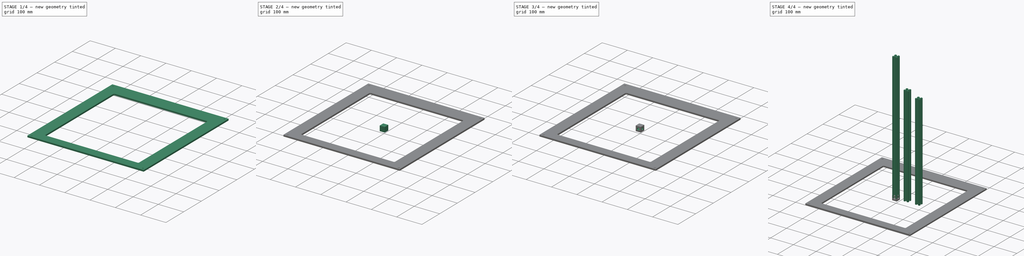
[diagram: build sequence overview — one tinted view per stage of 4, left to right]
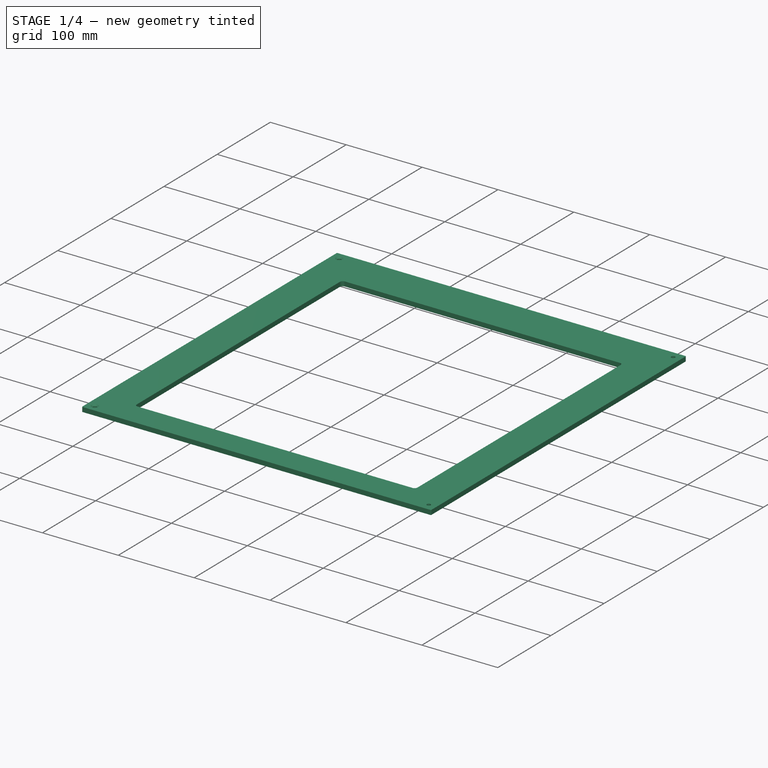
[diagram: stage 1 of 4 — iso view after this stage's code; geometry added in this stage tinted green]
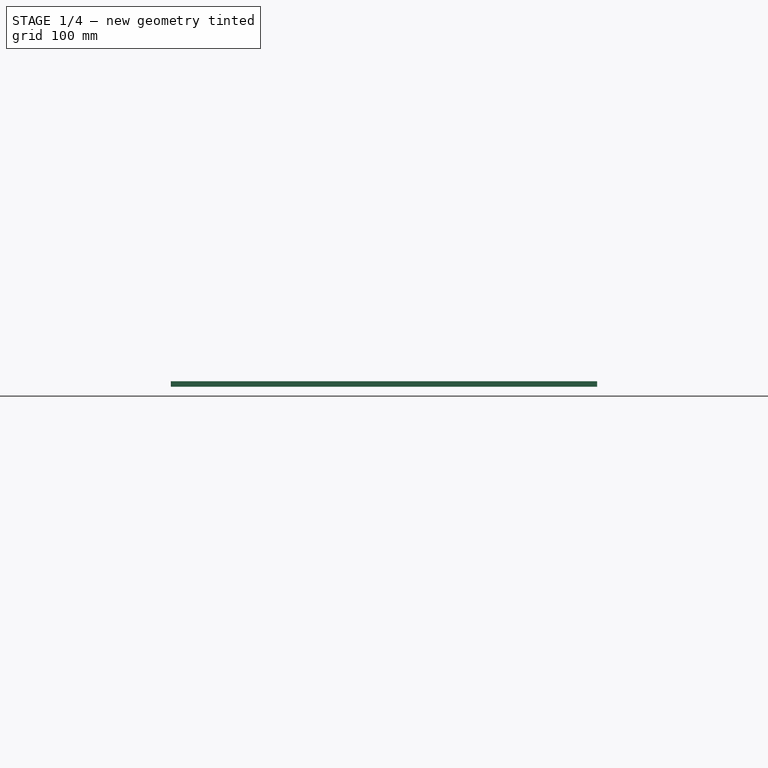
[diagram: stage 1 of 4 — front view after this stage's code; geometry added in this stage tinted green]
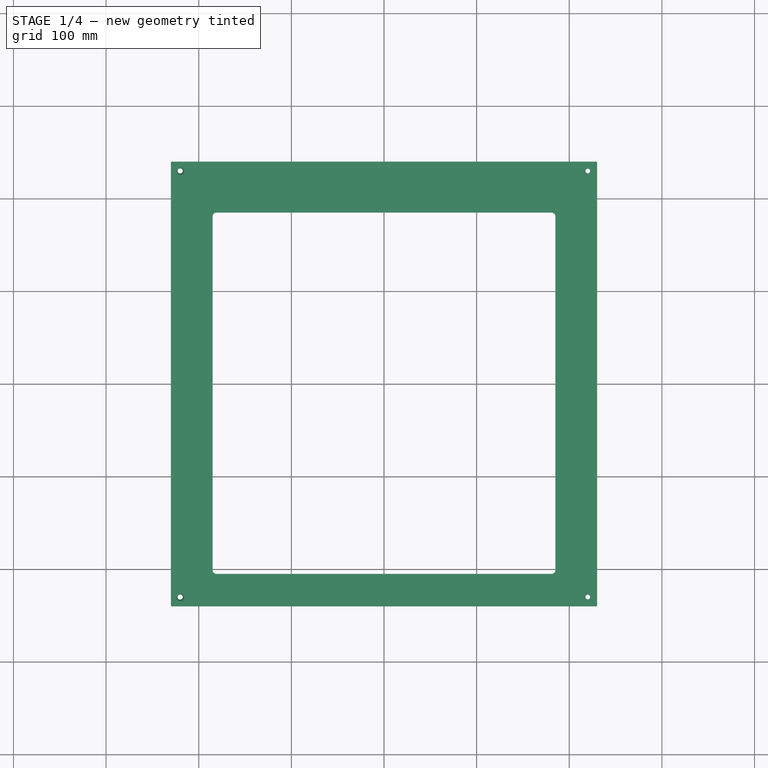
[diagram: stage 1 of 4 — top view after this stage's code; geometry added in this stage tinted green]
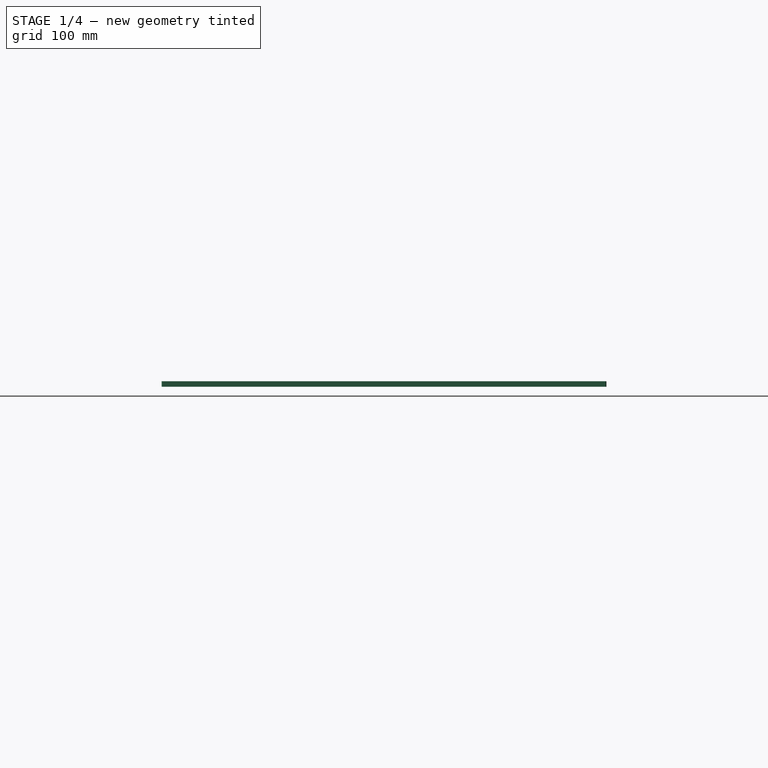
[diagram: stage 1 of 4 — right view after this stage's code; geometry added in this stage tinted green]
FCSTD DOCUMENT  (FreeCAD 1.0R39109 (Git))
Label: standard parts and profiles
License: All rights reserved
LicenseURL: https://en.wikipedia.org/wiki/All_rights_reserved
objects: Part::Feature×26, Sketcher::SketchObject×6, PartDesign::Hole×6, Part::Extrusion×3, PartDesign::Pad×2, PartDesign::Body×2
note: 67 computed .brp shape members not serialized (recipe doc carries the construction recipe); baked Part::Feature solids carry a one-line shape summary decoded from their .brp

FEATURE [PartDesign::Body] Body  label="2020 corner"
  AllowCompound = false
  Group = -> [Sketch,Pad,Sketch002,Sketch003,Sketch004,Hole,Hole001]
  Origin = -> Origin
  Placement = pos=(50,0,500) rot=(0,0,1;0rad)
  Tip = -> Hole001
FEATURE [Sketcher::SketchObject] Sketch005
  ArcFitTolerance = 1e-06
  AttachmentSupport = -> [XY_Plane001]
  FullyConstrained = true
  MakeInternals = false
  MapMode = 5
  sketch-geometry (32):
    g0: LineSegment StartX=-230 StartY=239 StartZ=0 EndX=-230 EndY=-239 EndZ=0
    g1: LineSegment StartX=-229 StartY=-240 StartZ=0 EndX=229 EndY=-240 EndZ=0
    g2: LineSegment StartX=230 StartY=-239 StartZ=0 EndX=230 EndY=239 EndZ=0
    g3: LineSegment StartX=229 StartY=240 StartZ=0 EndX=-229 EndY=240 EndZ=0
    g4: LineSegment StartX=-185 StartY=181 StartZ=0 EndX=-185 EndY=-201 EndZ=0
    g5: LineSegment StartX=-181 StartY=-205 StartZ=0 EndX=181 EndY=-205 EndZ=0
    g6: LineSegment StartX=185 StartY=-201 StartZ=0 EndX=185 EndY=181 EndZ=0
    g7: LineSegment StartX=181 StartY=185 StartZ=0 EndX=-181 EndY=185 EndZ=0
    g8: ArcOfCircle CenterX=229 CenterY=239 CenterZ=0 NormalX=0 NormalY=0 NormalZ=1 AngleXU=0 Radius=1 StartAngle=2.9e-15 EndAngle=1.5708
    g9: GeomPoint [constr] X=230 Y=240 Z=0
    g10: ArcOfCircle CenterX=-229 CenterY=239 CenterZ=0 NormalX=0 NormalY=0 NormalZ=1 AngleXU=0 Radius=1 StartAngle=1.5708 EndAngle=3.14159
    g11: GeomPoint [constr] X=-230 Y=240 Z=0
    g12: ArcOfCircle CenterX=-229 CenterY=-239 CenterZ=0 NormalX=0 NormalY=0 NormalZ=1 AngleXU=0 Radius=1 StartAngle=3.14159 EndAngle=4.71239
    g13: GeomPoint [constr] X=-230 Y=-240 Z=0
    g14: ArcOfCircle CenterX=229 CenterY=-239 CenterZ=0 NormalX=0 NormalY=0 NormalZ=1 AngleXU=0 Radius=1 StartAngle=4.71239 EndAngle=6.28319
    g15: GeomPoint [constr] X=230 Y=-240 Z=0
    g16: ArcOfCircle CenterX=181 CenterY=181 CenterZ=0 NormalX=0 NormalY=0 NormalZ=1 AngleXU=0 Radius=4 StartAngle=1.2e-15 EndAngle=1.5708
    g17: GeomPoint [constr] X=185 Y=185 Z=0
    g18: ArcOfCircle CenterX=-181 CenterY=181 CenterZ=0 NormalX=0 NormalY=0 NormalZ=1 AngleXU=0 Radius=4 StartAngle=1.5708 EndAngle=3.14159
    g19: GeomPoint [constr] X=-185 Y=185 Z=0
    g20: ArcOfCircle CenterX=-181 CenterY=-201 CenterZ=0 NormalX=0 NormalY=0 NormalZ=1 AngleXU=0 Radius=4 StartAngle=3.14159 EndAngle=4.71239
    g21: GeomPoint [constr] X=-185 Y=-205 Z=0
    g22: ArcOfCircle CenterX=181 CenterY=-201 CenterZ=0 NormalX=0 NormalY=0 NormalZ=1 AngleXU=0 Radius=4 StartAngle=4.71239 EndAngle=6.28319
    g23: GeomPoint [constr] X=185 Y=-205 Z=0
    g24: LineSegment [constr] StartX=-220 StartY=230 StartZ=0 EndX=-220 EndY=-230 EndZ=0
    g25: LineSegment [constr] StartX=-220 StartY=-230 StartZ=0 EndX=220 EndY=-230 EndZ=0
    g26: LineSegment [constr] StartX=220 StartY=-230 StartZ=0 EndX=220 EndY=230 EndZ=0
    g27: LineSegment [constr] StartX=220 StartY=230 StartZ=0 EndX=-220 EndY=230 EndZ=0
    g28: Circle CenterX=220 CenterY=-230 CenterZ=0 NormalX=0 NormalY=0 NormalZ=1 AngleXU=0 Radius=2.5
    g29: Circle CenterX=220 CenterY=230 CenterZ=0 NormalX=0 NormalY=0 NormalZ=1 AngleXU=0 Radius=2.5
    g30: Circle CenterX=-220 CenterY=230 CenterZ=0 NormalX=0 NormalY=0 NormalZ=1 AngleXU=0 Radius=2.5
    g31: Circle CenterX=-220 CenterY=-230 CenterZ=0 NormalX=0 NormalY=0 NormalZ=1 AngleXU=0 Radius=2.5
  constraints (74):
    c: Vertical(g0)
    c: Vertical(g2)
    c: Horizontal(g1)
    c: Horizontal(g3)
    c: Symmetric(g11,g15,g-1)
    c: DistanceX(g13,g15) = 460
    c: DistanceY(g15,g9) = 480
    c: Vertical(g4)
    c: Vertical(g6)
    c: Horizontal(g5)
    c: Horizontal(g7)
    c: DistanceX(g23,g15) = 45
    c: DistanceX(g13,g21) = 45
    c: DistanceY(g19,g11) = 55
    c: DistanceY(g13,g21) = 35
    c: PointOnObject(g9,g2)
    c: PointOnObject(g9,g3)
    c: Tangent(g2,g8) = -1.5708
    c: Tangent(g3,g8) = -1.5708
    c: PointOnObject(g11,g0)
    c: PointOnObject(g11,g3)
    c: Tangent(g0,g10) = -1.5708
    c: Tangent(g3,g10) = -1.5708
    c: PointOnObject(g13,g0)
    c: PointOnObject(g13,g1)
    c: Tangent(g0,g12) = -1.5708
    c: Tangent(g1,g12) = -1.5708
    c: PointOnObject(g15,g1)
    c: PointOnObject(g15,g2)
    c: Tangent(g1,g14) = -1.5708
    c: Tangent(g2,g14) = -1.5708
    c: Equal(g8,g10)
    c: Equal(g8,g12)
    c: Equal(g8,g14)
    c: Radius(g8) = 1
    c: PointOnObject(g17,g6)
    c: PointOnObject(g17,g7)
    c: Tangent(g6,g16) = -1.5708
    c: Tangent(g7,g16) = -1.5708
    c: PointOnObject(g19,g4)
    c: PointOnObject(g19,g7)
    c: Tangent(g4,g18) = -1.5708
    c: Tangent(g7,g18) = -1.5708
    c: PointOnObject(g21,g4)
    c: PointOnObject(g21,g5)
    c: Tangent(g4,g20) = -1.5708
    c: Tangent(g5,g20) = -1.5708
    c: PointOnObject(g23,g5)
    c: PointOnObject(g23,g6)
    c: Tangent(g5,g22) = -1.5708
    c: Tangent(g6,g22) = -1.5708
    c: Equal(g16,g18)
    c: Equal(g16,g20)
    c: Equal(g16,g22)
    c: Radius(g16) = 4
    c: Coincident(g24,g25)
    c: Coincident(g25,g26)
    c: Coincident(g27,g24)
    c: Vertical(g24)
    c: Vertical(g26)
    c: Horizontal(g25)
    c: Symmetric(g24,g26,g-2)
    c: DistanceY(g13,g24) = 10
    c: DistanceY(g24,g11) = 10
    c: Coincident(g26,g27)
    c: Coincident(g28,g25)
    c: Coincident(g29,g26)
    c: Coincident(g30,g24)
    c: Coincident(g31,g24)
    c: Equal(g30,g31)
    c: Equal(g30,g28)
    c: Equal(g30,g29)
    c: Diameter(g30) = 5
    c: DistanceX(g11,g24) = 10
FEATURE [PartDesign::Pad] Pad001
  Direction = (0,0,1)
  Length = 6
  Length2 = 10
  Profile = -> Sketch005
  ReferenceAxis = -> Sketch005 [N_Axis]
  Refine = true
  Suppressed = false
  Type = 0
FEATURE [PartDesign::Hole] Hole003
  BaseFeature = -> Pad001
  CustomThreadClearance = 0
  Depth = 25
  DepthType = 0
  Diameter = 5.5
  DrillForDepth = false
  DrillPoint = 1
  DrillPointAngle = 118
  HoleCutCountersinkAngle = 90
  HoleCutCustomValues = false
  HoleCutDepth = 0
  HoleCutDiameter = 9
  HoleCutType = 2
  ModelThread = false
  Profile = -> Pad001 [Edge51]
  Refine = true
  Suppressed = false
  Tapered = false
  TaperedAngle = 90
  ThreadClass = 0
  ThreadDepth = 25
  ThreadDepthType = 0
  ThreadDirection = 0
  ThreadFit = 0
  ThreadSize = 13
  ThreadType = 1
  Threaded = false
  UseCustomThreadClearance = false
FEATURE [PartDesign::Hole] Hole004
  BaseFeature = -> Hole003
  CustomThreadClearance = 0
  Depth = 25
  DepthType = 0
  Diameter = 5.5
  DrillForDepth = false
  DrillPoint = 1
  DrillPointAngle = 118
  HoleCutCountersinkAngle = 90
  HoleCutCustomValues = false
  HoleCutDepth = 0
  HoleCutDiameter = 9
  HoleCutType = 2
  ModelThread = false
  Profile = -> Hole003 [Edge43]
  Refine = true
  Suppressed = false
  Tapered = false
  TaperedAngle = 90
  ThreadClass = 0
  ThreadDepth = 25
  ThreadDepthType = 0
  ThreadDirection = 0
  ThreadFit = 0
  ThreadSize = 13
  ThreadType = 1
  Threaded = false
  UseCustomThreadClearance = false
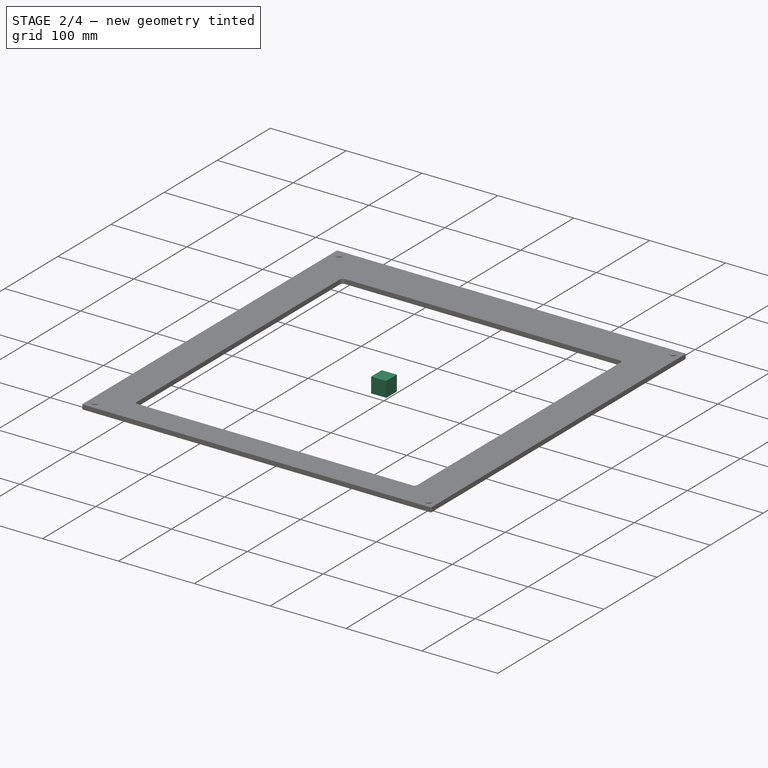
[diagram: stage 2 of 4 — iso view after this stage's code; geometry added in this stage tinted green]
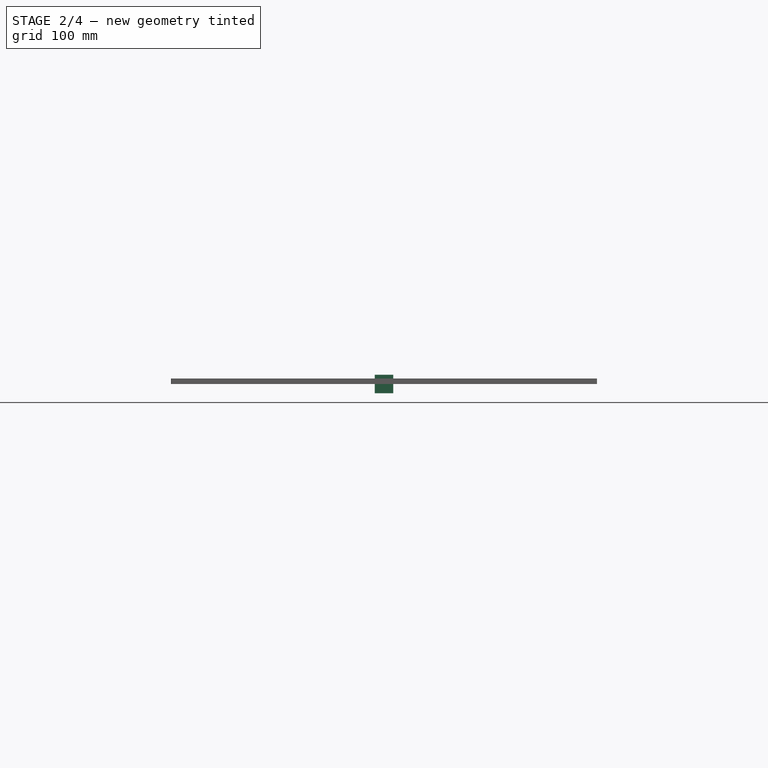
[diagram: stage 2 of 4 — front view after this stage's code; geometry added in this stage tinted green]
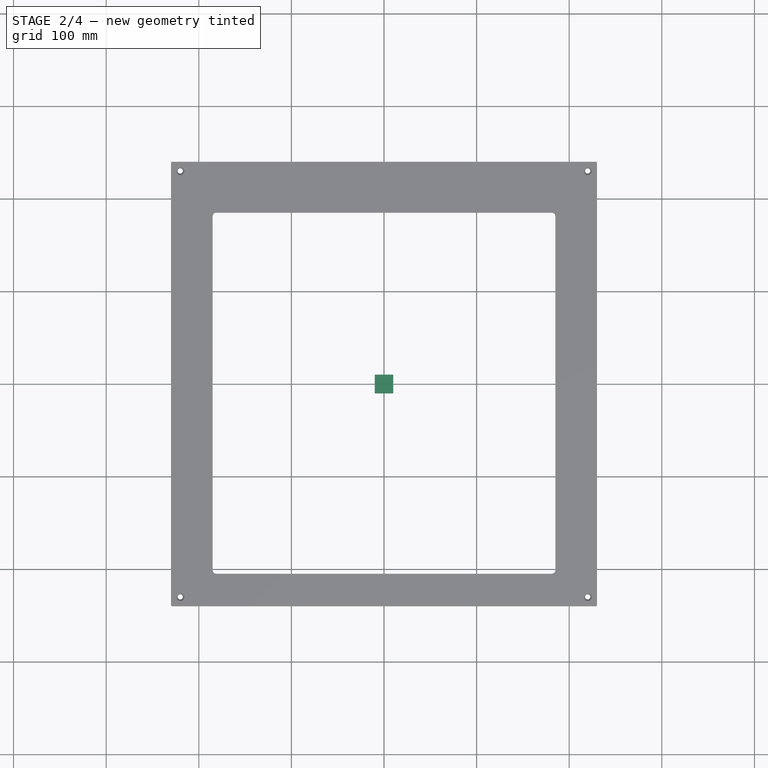
[diagram: stage 2 of 4 — top view after this stage's code; geometry added in this stage tinted green]
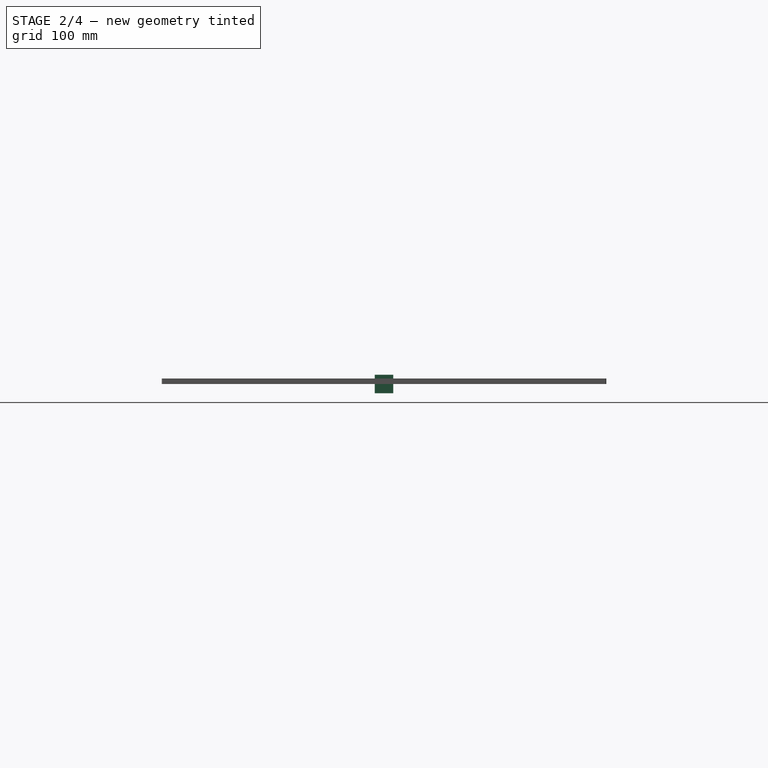
[diagram: stage 2 of 4 — right view after this stage's code; geometry added in this stage tinted green]
FEATURE [Sketcher::SketchObject] Sketch
  ArcFitTolerance = 1e-06
  AttachmentSupport = -> [XY_Plane]
  FullyConstrained = true
  MakeInternals = false
  MapMode = 5
  sketch-geometry (4):
    g0: LineSegment StartX=-10 StartY=10 StartZ=0 EndX=-10 EndY=-10 EndZ=0
    g1: LineSegment StartX=-10 StartY=-10 StartZ=0 EndX=10 EndY=-10 EndZ=0
    g2: LineSegment StartX=10 StartY=-10 StartZ=0 EndX=10 EndY=10 EndZ=0
    g3: LineSegment StartX=10 StartY=10 StartZ=0 EndX=-10 EndY=10 EndZ=0
  constraints (11):
    c: Coincident(g0,g1)
    c: Coincident(g1,g2)
    c: Coincident(g2,g3)
    c: Coincident(g3,g0)
    c: Vertical(g0)
    c: Vertical(g2)
    c: Horizontal(g1)
    c: Horizontal(g3)
    c: Distance(g0,g2) = 20
    c: Distance(g1,g3) = 20
    c: Symmetric(g1,g0,g-1)
FEATURE [PartDesign::Pad] Pad
  Direction = (0,0,1)
  Length = 20
  Length2 = 10
  Midplane = true
  Profile = -> Sketch
  ReferenceAxis = -> Sketch [N_Axis]
  Refine = true
  Suppressed = false
  Type = 0
FEATURE [PartDesign::Hole] Hole005
  BaseFeature = -> Hole004
  CustomThreadClearance = 0
  Depth = 25
  DepthType = 0
  Diameter = 5.5
  DrillForDepth = false
  DrillPoint = 1
  DrillPointAngle = 118
  HoleCutCountersinkAngle = 90
  HoleCutCustomValues = false
  HoleCutDepth = 0
  HoleCutDiameter = 9
  HoleCutType = 2
  ModelThread = false
  Profile = -> Hole004 [Edge44]
  Refine = true
  Suppressed = false
  Tapered = false
  TaperedAngle = 90
  ThreadClass = 0
  ThreadDepth = 25
  ThreadDepthType = 0
  ThreadDirection = 0
  ThreadFit = 0
  ThreadSize = 13
  ThreadType = 1
  Threaded = false
  UseCustomThreadClearance = false
FEATURE [PartDesign::Hole] Hole006
  BaseFeature = -> Hole005
  CustomThreadClearance = 0
  Depth = 25
  DepthType = 0
  Diameter = 5.5
  DrillForDepth = false
  DrillPoint = 1
  DrillPointAngle = 118
  HoleCutCountersinkAngle = 90
  HoleCutCustomValues = false
  HoleCutDepth = 0
  HoleCutDiameter = 9
  HoleCutType = 2
  ModelThread = false
  Profile = -> Hole005 [Edge34]
  Refine = true
  Suppressed = false
  Tapered = false
  TaperedAngle = 90
  ThreadClass = 0
  ThreadDepth = 25
  ThreadDepthType = 0
  ThreadDirection = 0
  ThreadFit = 0
  ThreadSize = 13
  ThreadType = 1
  Threaded = false
  UseCustomThreadClearance = false
FEATURE [PartDesign::Body] Body001  label="top"
  AllowCompound = false
  Group = -> [Sketch005,Pad001,Hole003,Hole004,Hole005,Hole006]
  Origin = -> Origin001
  Placement = pos=(0,0,-400) rot=(1,0,0;1.5708rad)
  Tip = -> Hole006
FEATURE [Part::Feature] Part__Feature  label="mgn12h carriage"
  Placement = pos=(200,0,450) rot=(0,0,1;0rad)
  shape: bbox 27 x 10.2 x 45.8 mm, 370 faces (baked)
FEATURE [Part::Feature] Part__Feature001  label="mgn12 x348 rail"
  Placement = pos=(150,0,0) rot=(0,0,1;0rad)
  shape: bbox 12 x 8 x 348 mm, 23 faces (baked)
FEATURE [Part::Feature] Part__Feature002  label="mgn12 x374 rail"
  Placement = pos=(200,0,0) rot=(0,0,1;0rad)
  shape: bbox 12 x 8 x 374 mm, 23 faces (baked)
FEATURE [Part::Feature] Part__Feature003  label="mgn12 x400 rail"
  Placement = pos=(250,0,0) rot=(0,0,1;0rad)
  shape: bbox 12 x 8 x 400 mm, 23 faces (baked)
FEATURE [Part::Feature] Part__Feature007  label="mgn12h z carriage left"
  shape: bbox 62.12 x 49.91 x 36.16 mm, 221 faces (baked)
FEATURE [Part::Feature] Part__Feature008  label="mgn12h z carriage right"
  Placement = pos=(100,0,0) rot=(0,0,1;0rad)
  shape: bbox 62.12 x 49.91 x 36.16 mm, 221 faces (baked)
FEATURE [Part::Feature] Part__Feature009  label="mgn12h z carriage trim left"
  Placement = pos=(0,0,-50) rot=(0,0,1;0rad)
  shape: bbox 62.07 x 50.72 x 5.328 mm, 76 faces (baked)
FEATURE [Part::Feature] Part__Feature010  label="mgn12h z carriage trim right"
  Placement = pos=(100,0,-50) rot=(0,0,1;0rad)
  shape: bbox 62.07 x 50.72 x 5.328 mm, 76 faces (baked)
FEATURE [Part::Feature] Part__Feature011  label="mgn12h z carriage rear"
  Placement = pos=(600,0,-200) rot=(0,0,1;0rad)
  shape: bbox 42.29 x 87.9 x 45.74 mm, 187 faces (baked)
FEATURE [Part::Feature] Part__Feature014  label="2020 x560 vgroove"
  Placement = pos=(100,0,-600) rot=(0,0,1;0rad)
  shape: bbox 20 x 20 x 560 mm, 76 faces (baked)
FEATURE [Part::Feature] Part__Feature015  label="2020 x420 vgroove"
  Placement = pos=(200,0,-600) rot=(0,0,1;0rad)
  shape: bbox 20 x 20 x 420 mm, 59 faces (baked)
FEATURE [Part::Feature] Part__Feature016  label="2020 x440 vgroove"
  Placement = pos=(150,0,-600) rot=(0,0,1;0rad)
  shape: bbox 20 x 20 x 440 mm, 59 faces (baked)
FEATURE [Part::Feature] Part__Feature017  label="mgn12h z bed support left"
  Placement = pos=(700,0,-500) rot=(0,0,1;0rad)
  shape: bbox 44.86 x 46.61 x 9.602 mm, 159 faces (baked)
FEATURE [Part::Feature] Part__Feature018  label="mgn12h z bed support rear"
  Placement = pos=(600,0,-78) rot=(0,0,1;0rad)
  shape: bbox 28.85 x 54.78 x 16.33 mm, 130 faces (baked)
FEATURE [Part::Feature] Part__Feature019  label="mgn12h z bed support right"
  Placement = pos=(50,0,-500) rot=(0,0,1;0rad)
  shape: bbox 44.86 x 46.61 x 9.602 mm, 159 faces (baked)
FEATURE [Part::Feature] Part__Feature020  label="mgn12c carriage"
  Placement = pos=(200,0,500) rot=(0,0,1;0rad)
  shape: bbox 27 x 10.2 x 35.1 mm, 527 faces (baked)
FEATURE [Part::Feature] Part__Feature030  label="pinned b drive upper"
  shape: bbox 116.2 x 53.62 x 16.01 mm, 254 faces (baked)
FEATURE [Part::Feature] Part__Feature031  label="pinned b drive lower"
  shape: bbox 116.2 x 56.53 x 18.01 mm, 228 faces (baked)
FEATURE [Part::Feature] Part__Feature075  label="pinned a drive lower"
  shape: bbox 116.2 x 55.31 x 18.43 mm, 223 faces (baked)
FEATURE [Part::Feature] Part__Feature074  label="pinned a drive upper"
  Placement = pos=(265.276,71.5544,-46.612) rot=(0,0,-1;1.5708rad)
  shape: bbox 116.2 x 58.19 x 16.91 mm, 275 faces (baked)
FEATURE [Part::Feature] Part__Feature105  label="a front idler tensioner"
  Placement = pos=(450,0,300) rot=(0,0,1;0rad)
  shape: bbox 18 x 45 x 25 mm, 78 faces (baked)
FEATURE [Part::Feature] Part__Feature090  label="b front idler tensioner"
  Placement = pos=(136,-63,1.4e-14) rot=(1,0,0;4.71239rad)
  shape: bbox 18 x 45 x 25 mm, 78 faces (baked)
FEATURE [Part::Feature] Part__Feature092  label="Front_Idler_bottom a"
  Placement = pos=(50,307.327,200) rot=(0,0,1;0rad)
  shape: bbox 51.44 x 46.99 x 14.26 mm, 156 faces (baked)
FEATURE [Part::Feature] Part__Feature091  label="Front_Idler_top a"
  Placement = pos=(50,307.327,200) rot=(0,0,1;0rad)
  shape: bbox 51.45 x 46.99 x 22.26 mm, 152 faces (baked)
FEATURE [Part::Feature] Part__Feature077  label="Front_Idler_bottom b"
  Placement = pos=(200,328.742,300) rot=(0.707107,-0.707107,0;3.14159rad)
  shape: bbox 46.99 x 51.44 x 14.26 mm, 156 faces (baked)
FEATURE [Part::Feature] Part__Feature076  label="Front_Idler_top b"
  Placement = pos=(200,328.742,300) rot=(0.707107,-0.707107,0;3.14159rad)
  shape: bbox 46.99 x 50.68 x 22.26 mm, 152 faces (baked)
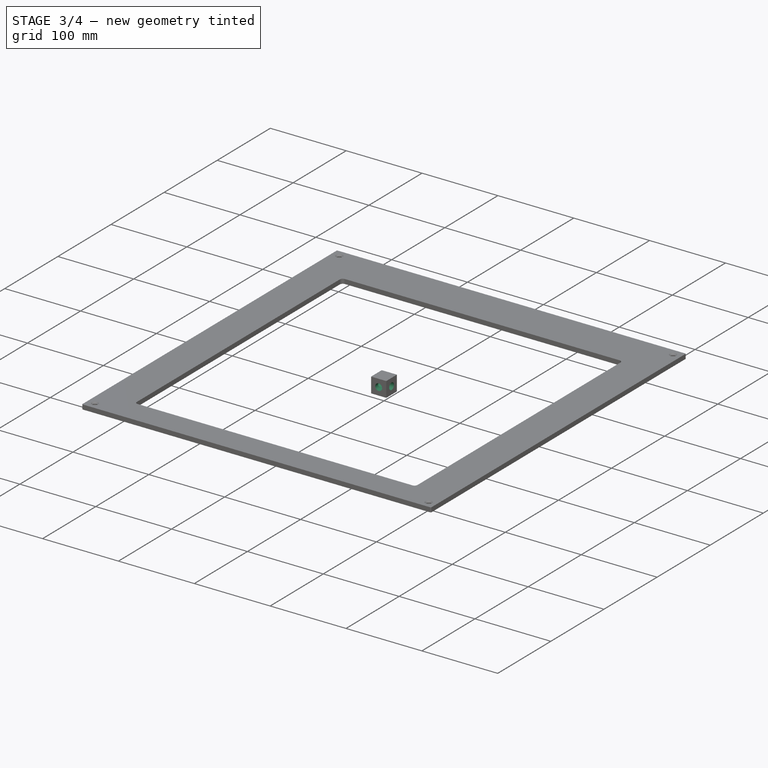
[diagram: stage 3 of 4 — iso view after this stage's code; geometry added in this stage tinted green]
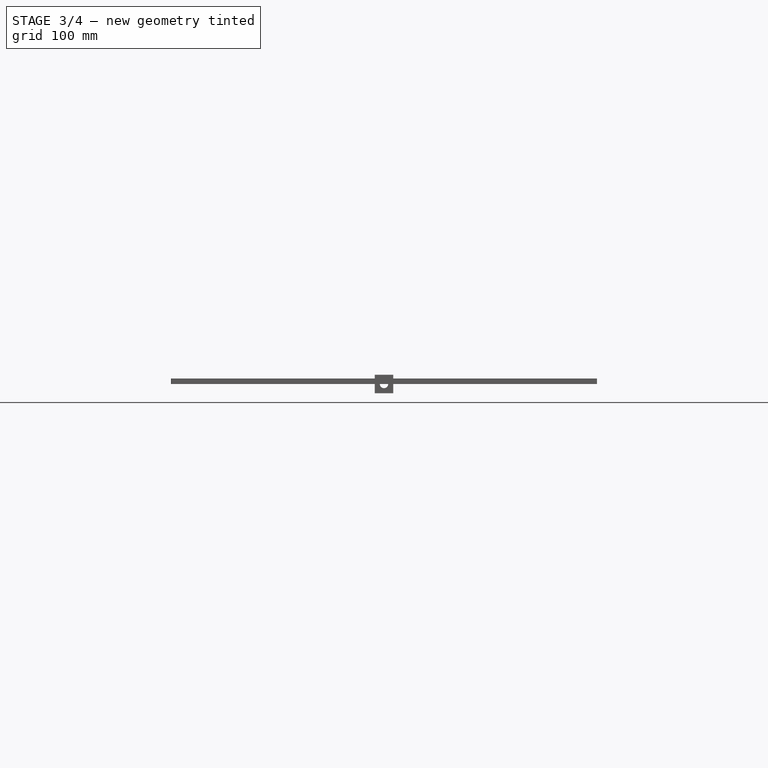
[diagram: stage 3 of 4 — front view after this stage's code; geometry added in this stage tinted green]
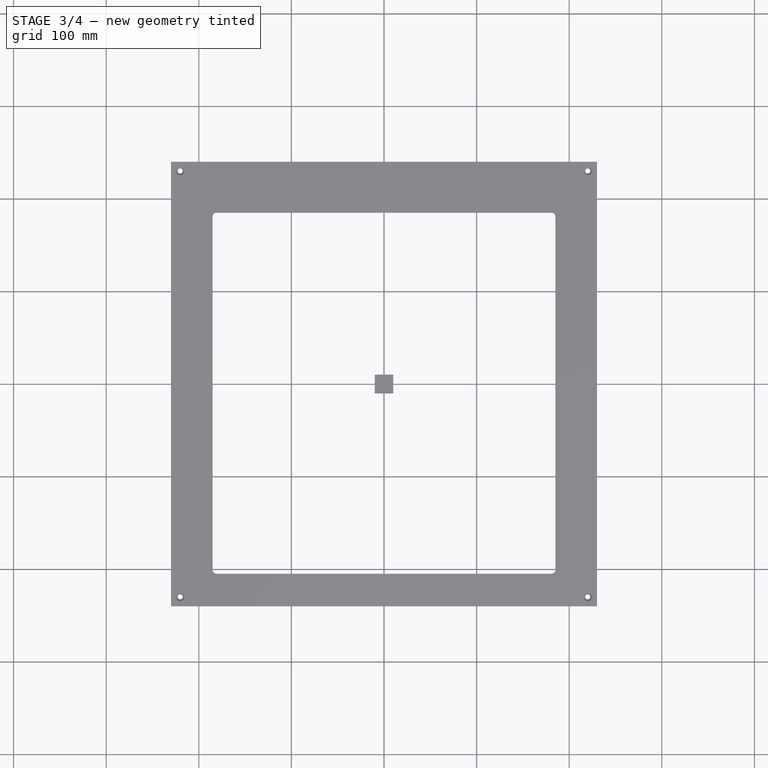
[diagram: stage 3 of 4 — top view after this stage's code; geometry added in this stage tinted green]
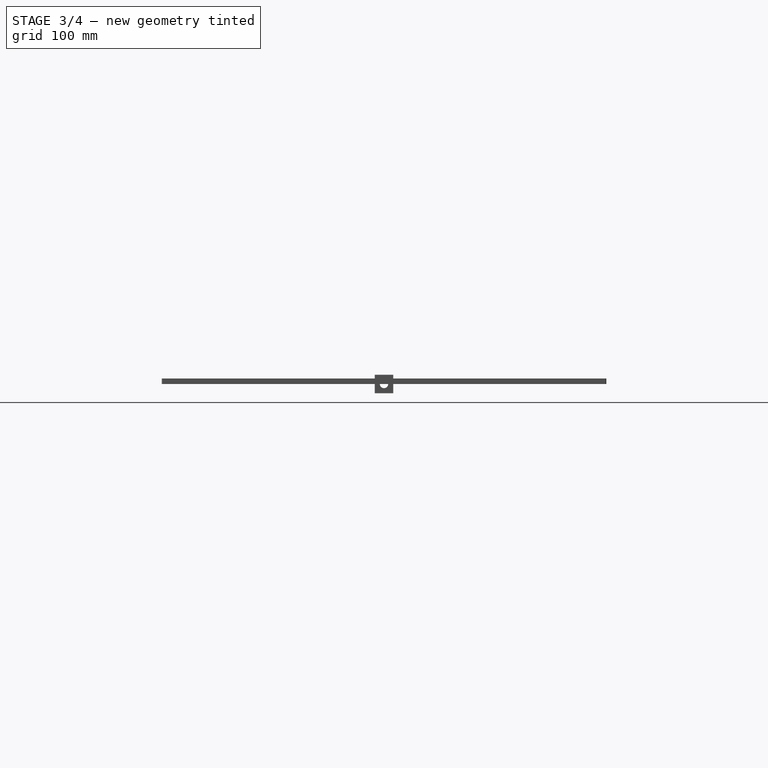
[diagram: stage 3 of 4 — right view after this stage's code; geometry added in this stage tinted green]
FEATURE [Sketcher::SketchObject] Sketch002
  ArcFitTolerance = 1e-06
  AttachmentSupport = -> [Pad]
  FullyConstrained = true
  MakeInternals = false
  MapMode = 5
  Placement = pos=(0,-10,0) rot=(1,0,0;1.5708rad)
  sketch-geometry (1):
    g0: Circle CenterX=0 CenterY=0 CenterZ=0 NormalX=0 NormalY=0 NormalZ=1 AngleXU=0 Radius=2.5
  constraints (2):
    c: Coincident(g0,g-1)
    c: Diameter(g0) = 5
FEATURE [Sketcher::SketchObject] Sketch003
  ArcFitTolerance = 1e-06
  AttachmentSupport = -> [Pad]
  FullyConstrained = true
  MakeInternals = false
  MapMode = 5
  Placement = pos=(-10,0,0) rot=(0.57735,-0.57735,-0.57735;2.0944rad)
  sketch-geometry (1):
    g0: Circle CenterX=0 CenterY=0 CenterZ=0 NormalX=0 NormalY=0 NormalZ=1 AngleXU=0 Radius=2.5
  constraints (2):
    c: Diameter(g0) = 5
    c: Coincident(g0,g-1)
FEATURE [Sketcher::SketchObject] Sketch004
  ArcFitTolerance = 1e-06
  AttachmentSupport = -> [Pad]
  FullyConstrained = true
  MakeInternals = false
  MapMode = 5
  Placement = pos=(0,0,-10) rot=(1,0,0;3.14159rad)
  sketch-geometry (1):
    g0: Circle CenterX=0 CenterY=0 CenterZ=0 NormalX=0 NormalY=0 NormalZ=1 AngleXU=0 Radius=2.5
  constraints (2):
    c: Diameter(g0) = 5
    c: Coincident(g0,g-1)
FEATURE [PartDesign::Hole] Hole
  BaseFeature = -> Pad
  CustomThreadClearance = 0
  Depth = 25
  DepthType = 0
  Diameter = 5
  DrillForDepth = false
  DrillPoint = 1
  DrillPointAngle = 118
  HoleCutCountersinkAngle = 90
  HoleCutCustomValues = false
  HoleCutDepth = 20
  HoleCutDiameter = 9
  HoleCutType = 1
  ModelThread = false
  Profile = -> Sketch002
  Refine = true
  Suppressed = false
  Tapered = false
  TaperedAngle = 90
  ThreadClass = 0
  ThreadDepth = 25
  ThreadDepthType = 0
  ThreadDirection = 0
  ThreadFit = 0
  ThreadSize = 0
  ThreadType = 0
  Threaded = false
  UseCustomThreadClearance = false
FEATURE [PartDesign::Hole] Hole001
  BaseFeature = -> Hole
  CustomThreadClearance = 0
  Depth = 25
  DepthType = 0
  Diameter = 5
  DrillForDepth = false
  DrillPoint = 1
  DrillPointAngle = 118
  HoleCutCountersinkAngle = 90
  HoleCutCustomValues = false
  HoleCutDepth = 20
  HoleCutDiameter = 9
  HoleCutType = 1
  ModelThread = false
  Profile = -> Sketch003
  Refine = true
  Suppressed = false
  Tapered = false
  TaperedAngle = 90
  ThreadClass = 0
  ThreadDepth = 25
  ThreadDepthType = 0
  ThreadDirection = 0
  ThreadFit = 0
  ThreadSize = 0
  ThreadType = 0
  Threaded = false
  UseCustomThreadClearance = false
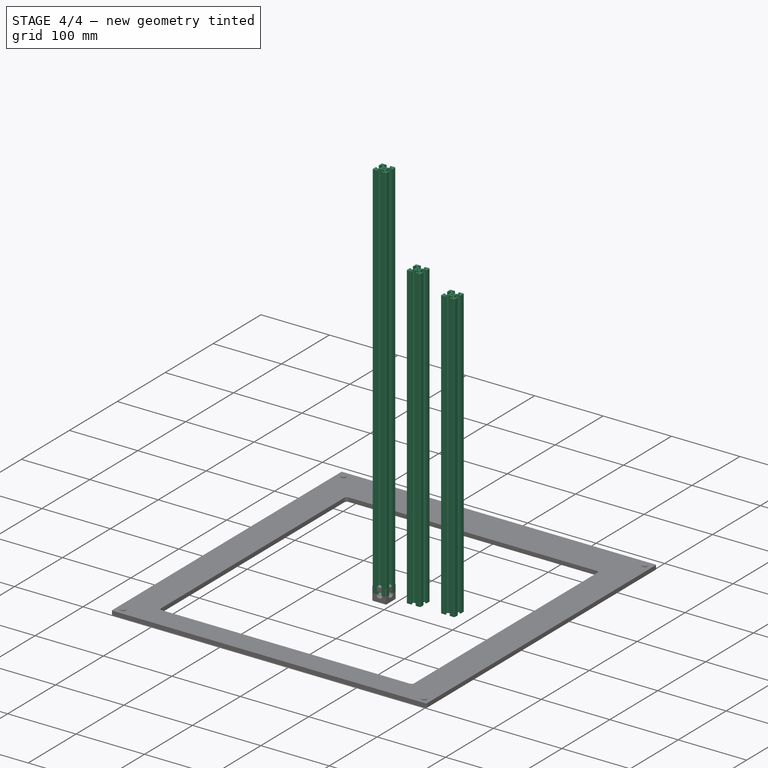
[diagram: stage 4 of 4 — iso view after this stage's code; geometry added in this stage tinted green]
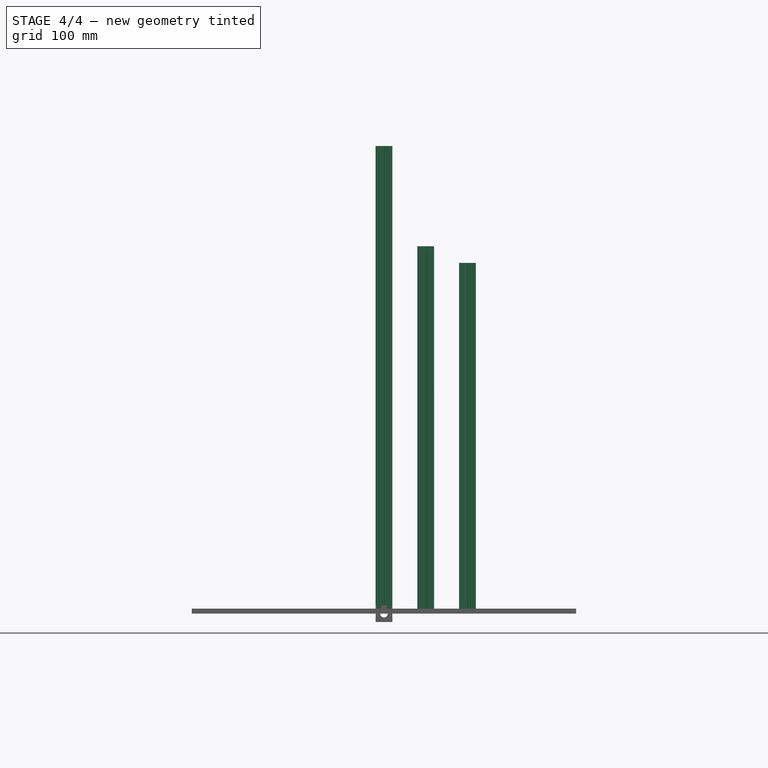
[diagram: stage 4 of 4 — front view after this stage's code; geometry added in this stage tinted green]
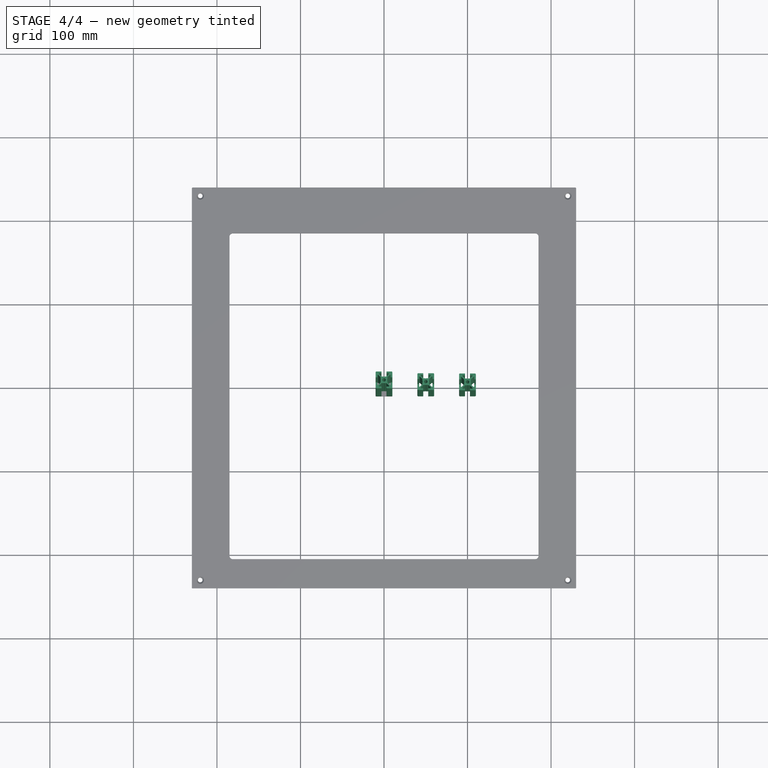
[diagram: stage 4 of 4 — top view after this stage's code; geometry added in this stage tinted green]
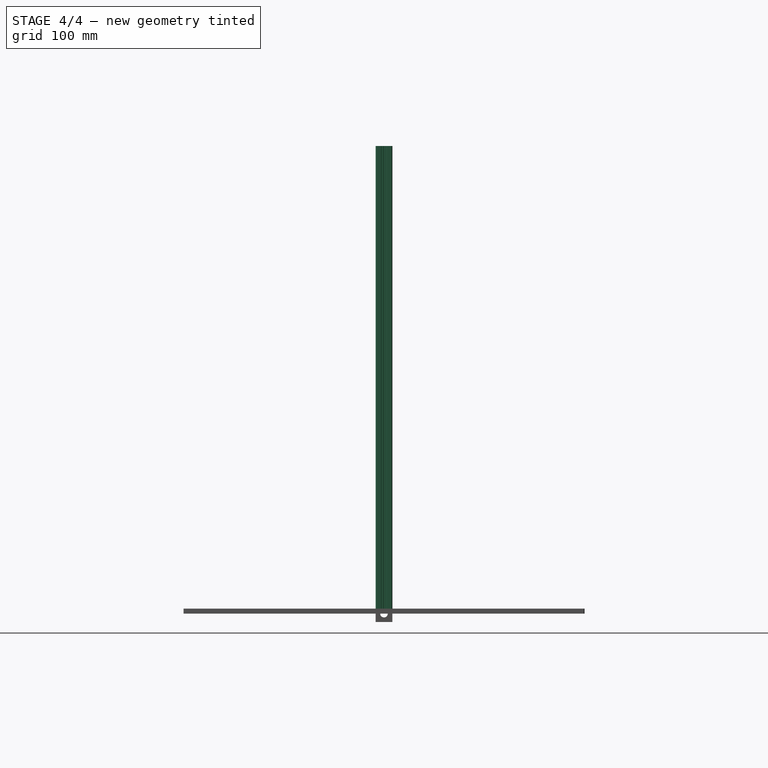
[diagram: stage 4 of 4 — right view after this stage's code; geometry added in this stage tinted green]
FEATURE [Sketcher::SketchObject] Sketch001  label="2020 profile"
  ArcFitTolerance = 1e-06
  FullyConstrained = false
  MakeInternals = false
  sketch-geometry (69):
    g0: LineSegment StartX=8 StartY=3 StartZ=0 EndX=8 EndY=6 EndZ=0
    g1: LineSegment StartX=8 StartY=6 StartZ=0 EndX=7.06065 EndY=6 EndZ=0
    g2: LineSegment StartX=7.06065 StartY=6 StartZ=0 EndX=4 EndY=2.93934 EndZ=0
    g3: LineSegment StartX=4 StartY=2.93934 StartZ=0 EndX=4 EndY=0.519628 EndZ=0
    g4: LineSegment StartX=4 StartY=0.519628 StartZ=0 EndX=3.7 EndY=4.99986e-09 EndZ=0
    g5: LineSegment StartX=3.7 StartY=4.99986e-09 StartZ=0 EndX=4 EndY=-0.519615 EndZ=0
    g6: LineSegment StartX=4 StartY=-0.519615 StartZ=0 EndX=4 EndY=-2.93935 EndZ=0
    g7: LineSegment StartX=4 StartY=-2.93935 StartZ=0 EndX=7.06067 EndY=-6 EndZ=0
    g8: LineSegment StartX=7.06067 StartY=-6 StartZ=0 EndX=8 EndY=-6 EndZ=0
    g9: LineSegment StartX=8 StartY=-6 StartZ=0 EndX=8 EndY=-3 EndZ=0
    g10: LineSegment StartX=8 StartY=-3 StartZ=0 EndX=9.7 EndY=-3 EndZ=0
    g11: ArcOfCircle CenterX=9.7 CenterY=-3.3 CenterZ=0 NormalX=0 NormalY=0 NormalZ=1 AngleXU=-3.14159 Radius=0.3 StartAngle=3.14159 EndAngle=4.71239
    g12: LineSegment StartX=10 StartY=-3.3 StartZ=0 EndX=10 EndY=-9 EndZ=0
    g13: ArcOfCircle CenterX=9 CenterY=-9 CenterZ=0 NormalX=0 NormalY=0 NormalZ=1 AngleXU=-3.14159 Radius=1 StartAngle=1.5708 EndAngle=3.14159
    g14: LineSegment StartX=9 StartY=-10 StartZ=0 EndX=3.3 EndY=-10 EndZ=0
    g15: ArcOfCircle CenterX=3.3 CenterY=-9.7 CenterZ=0 NormalX=0 NormalY=0 NormalZ=1 AngleXU=-3.14159 Radius=0.3 StartAngle=0 EndAngle=1.5708
    g16: LineSegment StartX=3 StartY=-9.7 StartZ=0 EndX=3 EndY=-8 EndZ=0
    g17: LineSegment StartX=3 StartY=-8 StartZ=0 EndX=6 EndY=-8 EndZ=0
    g18: LineSegment StartX=6 StartY=-8 StartZ=0 EndX=5.99998 EndY=-7.06066 EndZ=0
    g19: LineSegment StartX=5.99998 StartY=-7.06066 StartZ=0 EndX=2.93932 EndY=-4 EndZ=0
    g20: LineSegment StartX=2.93932 StartY=-4 StartZ=0 EndX=0.519628 EndY=-4 EndZ=0
    g21: LineSegment StartX=0.519628 StartY=-4 StartZ=0 EndX=-4.25e-14 EndY=-3.7 EndZ=0
    g22: LineSegment StartX=-4.26e-14 StartY=-3.7 StartZ=0 EndX=-0.519615 EndY=-4 EndZ=0
    g23: LineSegment StartX=-0.519615 StartY=-4 StartZ=0 EndX=-2.93935 EndY=-4 EndZ=0
    g24: LineSegment StartX=-2.93935 StartY=-4 StartZ=0 EndX=-6 EndY=-7.06066 EndZ=0
    g25: LineSegment StartX=-6 StartY=-7.06066 StartZ=0 EndX=-6 EndY=-8 EndZ=0
    g26: LineSegment StartX=-6 StartY=-8 StartZ=0 EndX=-3 EndY=-8 EndZ=0
    g27: LineSegment StartX=-3 StartY=-8 StartZ=0 EndX=-3 EndY=-9.7 EndZ=0
    g28: ArcOfCircle CenterX=-3.3 CenterY=-9.7 CenterZ=0 NormalX=0 NormalY=0 NormalZ=1 AngleXU=-3.14159 Radius=0.3 StartAngle=1.5708 EndAngle=3.14159
    g29: LineSegment StartX=-3.3 StartY=-10 StartZ=0 EndX=-9 EndY=-10 EndZ=0
    g30: ArcOfCircle CenterX=-9 CenterY=-9 CenterZ=0 NormalX=0 NormalY=0 NormalZ=1 AngleXU=-3.14159 Radius=1 StartAngle=0 EndAngle=1.5708
    g31: LineSegment StartX=-10 StartY=-9 StartZ=0 EndX=-10 EndY=-3.3 EndZ=0
    g32: ArcOfCircle CenterX=-9.7 CenterY=-3.3 CenterZ=0 NormalX=0 NormalY=0 NormalZ=1 AngleXU=-3.14159 Radius=0.3 StartAngle=4.71239 EndAngle=6.28319
    g33: LineSegment StartX=-9.7 StartY=-3 StartZ=0 EndX=-8 EndY=-3 EndZ=0
    g34: LineSegment StartX=-8 StartY=-3 StartZ=0 EndX=-8 EndY=-6 EndZ=0
    g35: LineSegment StartX=-8 StartY=-6 StartZ=0 EndX=-7.06067 EndY=-6 EndZ=0
    g36: LineSegment StartX=-7.06067 StartY=-6 StartZ=0 EndX=-4 EndY=-2.93934 EndZ=0
    g37: LineSegment StartX=-4 StartY=-2.93934 StartZ=0 EndX=-4 EndY=-0.519628 EndZ=0
    g38: LineSegment StartX=-4 StartY=-0.519628 StartZ=0 EndX=-3.7 EndY=5.00009e-09 EndZ=0
    g39: LineSegment StartX=-3.7 StartY=5.00009e-09 StartZ=0 EndX=-4 EndY=0.519615 EndZ=0
    g40: LineSegment StartX=-4 StartY=0.519615 StartZ=0 EndX=-4 EndY=2.93933 EndZ=0
    g41: LineSegment StartX=-4 StartY=2.93933 StartZ=0 EndX=-7.06067 EndY=6 EndZ=0
    g42: LineSegment StartX=-7.06067 StartY=6 StartZ=0 EndX=-8 EndY=6 EndZ=0
    g43: LineSegment StartX=-8 StartY=6 StartZ=0 EndX=-8 EndY=3 EndZ=0
    g44: LineSegment StartX=-8 StartY=3 StartZ=0 EndX=-9.7 EndY=3 EndZ=0
    g45: ArcOfCircle CenterX=-9.7 CenterY=3.3 CenterZ=0 NormalX=0 NormalY=0 NormalZ=1 AngleXU=-3.14159 Radius=0.3 StartAngle=0 EndAngle=1.5708
    g46: LineSegment StartX=-10 StartY=3.3 StartZ=0 EndX=-10 EndY=9 EndZ=0
    g47: ArcOfCircle CenterX=-9 CenterY=9 CenterZ=0 NormalX=0 NormalY=0 NormalZ=1 AngleXU=-3.14159 Radius=1 StartAngle=4.71239 EndAngle=6.28319
    g48: LineSegment StartX=-9 StartY=10 StartZ=0 EndX=-3.3 EndY=10 EndZ=0
    g49: ArcOfCircle CenterX=-3.3 CenterY=9.7 CenterZ=0 NormalX=0 NormalY=0 NormalZ=1 AngleXU=-3.14159 Radius=0.3 StartAngle=3.14159 EndAngle=4.71239
    g50: LineSegment StartX=-3 StartY=9.7 StartZ=0 EndX=-3 EndY=8 EndZ=0
    g51: LineSegment StartX=-3 StartY=8 StartZ=0 EndX=-6 EndY=8 EndZ=0
    g52: LineSegment StartX=-6 StartY=8 StartZ=0 EndX=-6 EndY=7.06064 EndZ=0
    g53: LineSegment StartX=-6 StartY=7.06064 StartZ=0 EndX=-2.93936 EndY=4 EndZ=0
    g54: LineSegment StartX=-2.93936 StartY=4 StartZ=0 EndX=-0.519628 EndY=4 EndZ=0
    g55: LineSegment StartX=-0.519628 StartY=4 StartZ=0 EndX=7.11e-14 EndY=3.7 EndZ=0
    g56: LineSegment StartX=7.11e-14 StartY=3.7 StartZ=0 EndX=0.519615 EndY=4 EndZ=0
    g57: LineSegment StartX=0.519615 StartY=4 StartZ=0 EndX=2.93933 EndY=4 EndZ=0
    g58: LineSegment StartX=2.93933 StartY=4 StartZ=0 EndX=6 EndY=7.06067 EndZ=0
    g59: LineSegment StartX=6 StartY=7.06067 StartZ=0 EndX=6 EndY=8 EndZ=0
    g60: LineSegment StartX=6 StartY=8 StartZ=0 EndX=3 EndY=8 EndZ=0
    g61: LineSegment StartX=3 StartY=8 StartZ=0 EndX=3 EndY=9.7 EndZ=0
    g62: ArcOfCircle CenterX=3.3 CenterY=9.7 CenterZ=0 NormalX=0 NormalY=0 NormalZ=1 AngleXU=-3.14159 Radius=0.3 StartAngle=4.71239 EndAngle=6.28319
    g63: LineSegment StartX=3.3 StartY=10 StartZ=0 EndX=9 EndY=10 EndZ=0
    g64: ArcOfCircle CenterX=9 CenterY=9 CenterZ=0 NormalX=0 NormalY=0 NormalZ=1 AngleXU=-3.14159 Radius=1 StartAngle=3.14159 EndAngle=4.71239
    g65: LineSegment StartX=10 StartY=9 StartZ=0 EndX=10 EndY=3.3 EndZ=0
    g66: ArcOfCircle CenterX=9.7 CenterY=3.3 CenterZ=0 NormalX=0 NormalY=0 NormalZ=1 AngleXU=-3.14159 Radius=0.3 StartAngle=1.5708 EndAngle=3.14159
    g67: LineSegment StartX=9.7 StartY=3 StartZ=0 EndX=8 EndY=3 EndZ=0
    g68: Circle CenterX=0 CenterY=0 CenterZ=0 NormalX=0 NormalY=0 NormalZ=1 AngleXU=0 Radius=2.1
  constraints (2):
    c: Diameter(g68) = 4.2
    c: Coincident(g68,g-1)
FEATURE [Part::Extrusion] Extrude  label="2020 x420 tgroove"
  Base = -> Sketch001
  Dir = (0,0,1)
  DirMode = 2
  FaceMakerClass = Part::FaceMakerBullseye
  FaceMakerMode = 3
  LengthFwd = 420
  LengthRev = 0
  Placement = pos=(100,0,0) rot=(0,0,1;0rad)
  Solid = true
  Symmetric = false
FEATURE [Part::Extrusion] Extrude001  label="2020 x440 tgroove"
  Base = -> Sketch001
  Dir = (0,0,1)
  DirMode = 2
  FaceMakerClass = Part::FaceMakerBullseye
  FaceMakerMode = 3
  LengthFwd = 440
  LengthRev = 0
  Placement = pos=(50,0,0) rot=(0,0,1;0rad)
  Solid = true
  Symmetric = false
FEATURE [Part::Extrusion] Extrude002  label="2020 x560 tgroove"
  Base = -> Sketch001
  Dir = (0,0,1)
  DirMode = 2
  FaceMakerClass = Part::FaceMakerBullseye
  FaceMakerMode = 3
  LengthFwd = 560
  LengthRev = 0
  Solid = true
  Symmetric = false
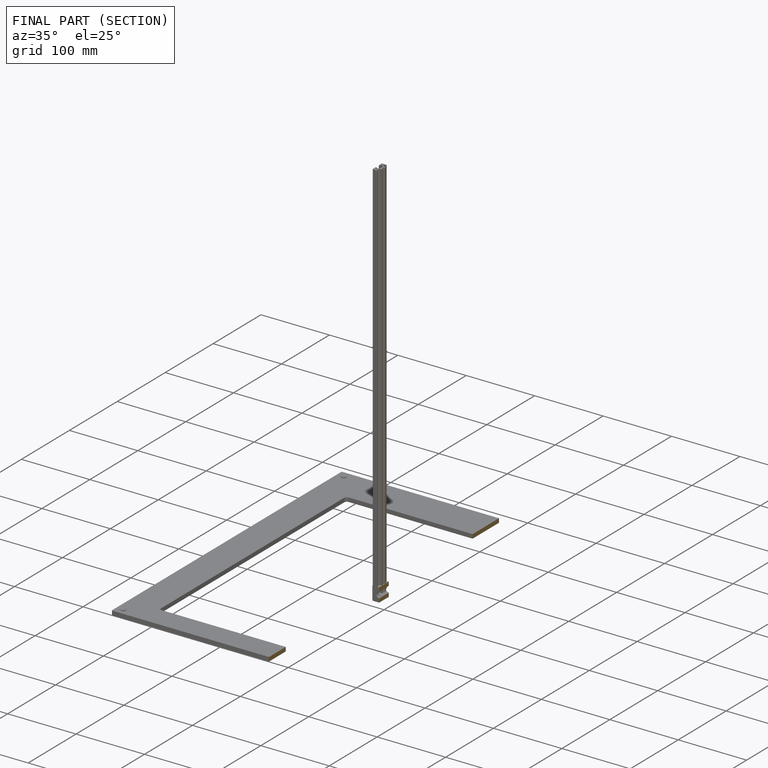
[diagram: finished part — half-section view (interior)]
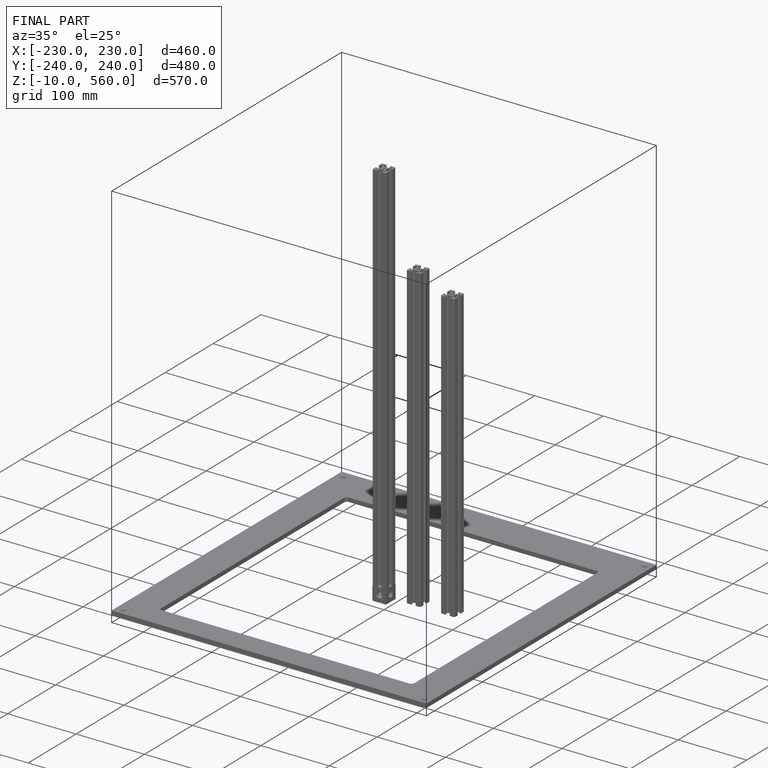
[diagram: finished part — iso view with bounding-box wireframe]
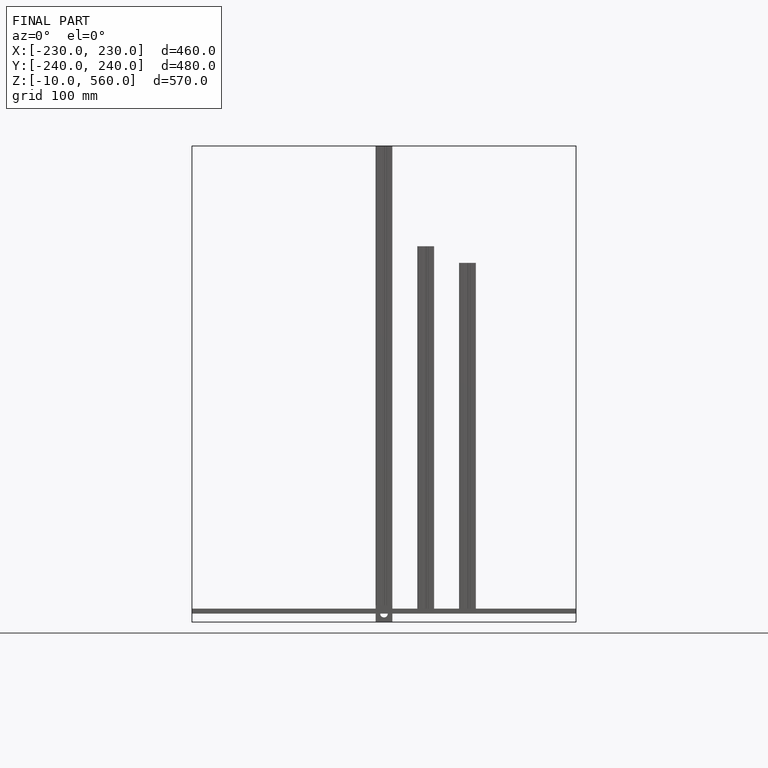
[diagram: finished part — front view with bounding-box wireframe]
